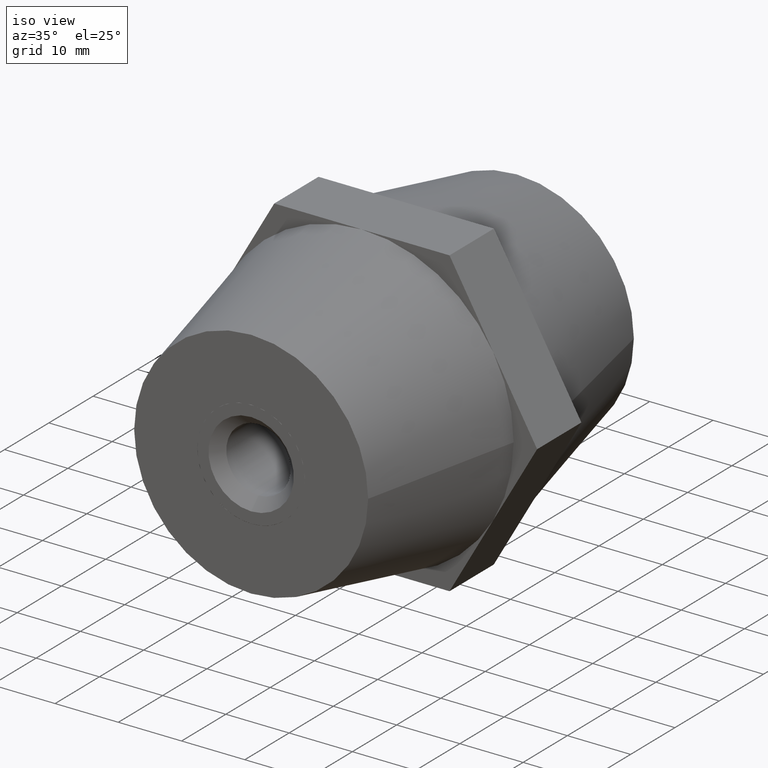
[diagram: clean part render]
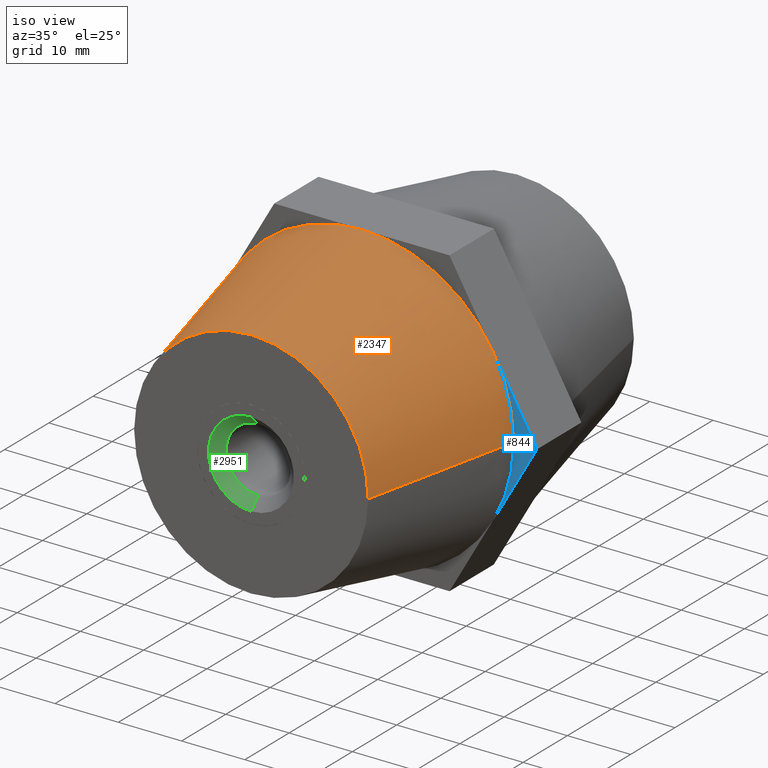
[diagram: same view with three faces highlighted in distinct colors, each labeled with its STEP entity id]
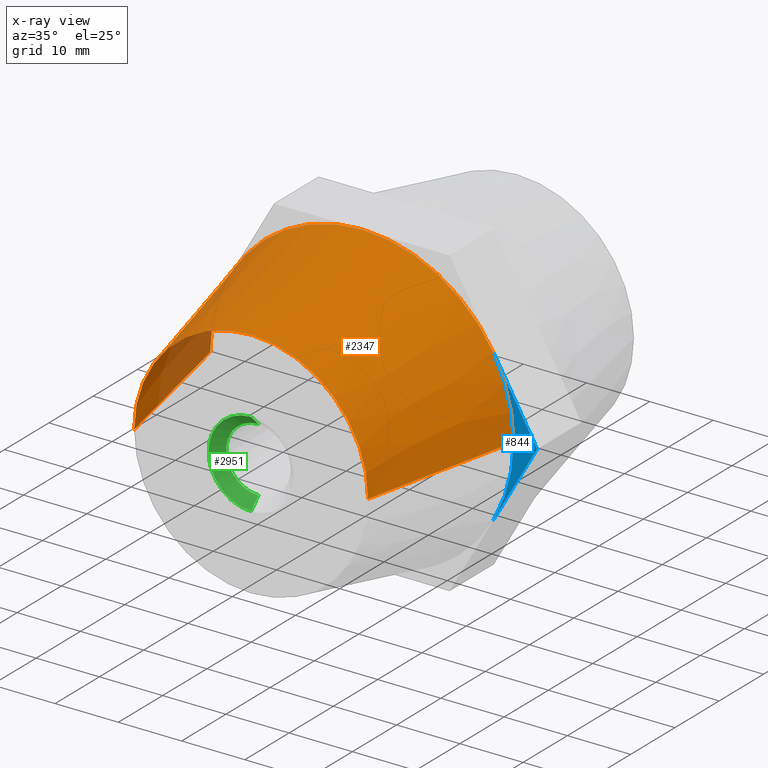
[diagram: x-ray of the same camera — body ghosted, the three highlighted faces saturated]
A machine part, iso view with three faces highlighted in distinct colors.
The next image is the same camera in x-ray (body ghosted, the three faces saturated) — at least one of them is partly hidden behind the body in this view.
Their STEP definitions:

[orange] entity #2347 — the highlighted conical surface has half-angle 12.407 deg.
#11 = LINE ( 'NONE', #1844, #2311 ) ;
#191 = ORIENTED_EDGE ( 'NONE', *, *, #590, .T. ) ;
#286 = DIRECTION ( 'NONE',  ( 0.0000000000000000000, 0.0000000000000000000, 1.000000000000000000 ) ) ;
#394 = LINE ( 'NONE', #2668, #3000 ) ;
#480 = VERTEX_POINT ( 'NONE', #3470 ) ;
#489 = DIRECTION ( 'NONE',  ( -1.000000000000000000, -1.875376730785737500E-016, 0.0000000000000000000 ) ) ;
#495 = CIRCLE ( 'NONE', #648, 24.00000000000000000 ) ;
#552 = VERTEX_POINT ( 'NONE', #3475 ) ;
#581 = CARTESIAN_POINT ( 'NONE',  ( 20.78460969082655300, -5.000000000000000000, 12.00000000000000000 ) ) ;
#590 = EDGE_CURVE ( 'NONE', #480, #1050, #394, .T. ) ;
#599 = VERTEX_POINT ( 'NONE', #581 ) ;
#642 = CIRCLE ( 'NONE', #3153, 24.00000000000000000 ) ;
#648 = AXIS2_PLACEMENT_3D ( 'NONE', #686, #959, #3077 ) ;
#680 = CIRCLE ( 'NONE', #2388, 18.50000000000000000 ) ;
#686 = CARTESIAN_POINT ( 'NONE',  ( 4.286263797015734900E-015, -5.000000000000000000, 6.466135099498040200E-016 ) ) ;
#864 = DIRECTION ( 'NONE',  ( 0.0000000000000000000, 1.000000000000000000, 0.0000000000000000000 ) ) ;
#959 = DIRECTION ( 'NONE',  ( 0.0000000000000000000, 1.000000000000000000, 0.0000000000000000000 ) ) ;
#1050 = VERTEX_POINT ( 'NONE', #1534 ) ;
#1060 = CARTESIAN_POINT ( 'NONE',  ( 1.281634599541417800E-015, -5.000000000000000000, 24.00000000000000000 ) ) ;
#1098 = DIRECTION ( 'NONE',  ( -1.000000000000000000, -1.084202172485504400E-016, 0.0000000000000000000 ) ) ;
#1120 = ORIENTED_EDGE ( 'NONE', *, *, #3342, .F. ) ;
#1135 = EDGE_CURVE ( 'NONE', #3366, #1287, #1707, .T. ) ;
#1178 = DIRECTION ( 'NONE',  ( 0.0000000000000000000, 1.000000000000000000, 0.0000000000000000000 ) ) ;
#1287 = VERTEX_POINT ( 'NONE', #1060 ) ;
#1311 = ORIENTED_EDGE ( 'NONE', *, *, #1135, .F. ) ;
#1395 = AXIS2_PLACEMENT_3D ( 'NONE', #3066, #2491, #2816 ) ;
#1534 = CARTESIAN_POINT ( 'NONE',  ( 24.00000000000000400, -5.000000000000000000, 2.939152317953647900E-015 ) ) ;
#1574 = AXIS2_PLACEMENT_3D ( 'NONE', #3484, #2241, #1098 ) ;
#1621 = AXIS2_PLACEMENT_3D ( 'NONE', #2963, #1178, #286 ) ;
#1637 = EDGE_CURVE ( 'NONE', #1287, #599, #3364, .T. ) ;
#1707 = CIRCLE ( 'NONE', #1395, 24.00000000000000000 ) ;
#1763 = DIRECTION ( 'NONE',  ( 0.2148617826751198800, 0.9766444667050899800, 2.631297944121799100E-017 ) ) ;
#1844 = CARTESIAN_POINT ( 'NONE',  ( -23.99999999999999600, -5.000000000000002700, 0.0000000000000000000 ) ) ;
#1936 = ORIENTED_EDGE ( 'NONE', *, *, #1998, .T. ) ;
#1998 = EDGE_CURVE ( 'NONE', #552, #480, #680, .T. ) ;
#2020 = EDGE_CURVE ( 'NONE', #599, #1050, #495, .T. ) ;
#2025 = DIRECTION ( 'NONE',  ( 0.0000000000000000000, 0.0000000000000000000, 1.000000000000000000 ) ) ;
#2157 = CARTESIAN_POINT ( 'NONE',  ( -23.99999999999999600, -5.000000000000000000, 0.0000000000000000000 ) ) ;
#2186 = CARTESIAN_POINT ( 'NONE',  ( -20.78460969082650000, -5.000000000000000000, 12.00000000000000000 ) ) ;
#2241 = DIRECTION ( 'NONE',  ( -1.224646799147352000E-016, 1.000000000000000000, 0.0000000000000000000 ) ) ;
#2275 = ORIENTED_EDGE ( 'NONE', *, *, #1637, .F. ) ;
#2311 = VECTOR ( 'NONE', #3104, 1000.000000000000100 ) ;
#2347 = ADVANCED_FACE ( 'NONE', ( #2769 ), #2377, .T. ) ;
#2377 = CONICAL_SURFACE ( 'NONE', #1574, 24.00000000000000000, 0.2165503049760894300 ) ;
#2388 = AXIS2_PLACEMENT_3D ( 'NONE', #3635, #2887, #489 ) ;
#2457 = ORIENTED_EDGE ( 'NONE', *, *, #2020, .F. ) ;
#2491 = DIRECTION ( 'NONE',  ( -1.224646799147352000E-016, 1.000000000000000000, 0.0000000000000000000 ) ) ;
#2668 = CARTESIAN_POINT ( 'NONE',  ( 24.00000000000000400, -4.999999999999997300, 2.939152317953647900E-015 ) ) ;
#2745 = ORIENTED_EDGE ( 'NONE', *, *, #3794, .F. ) ;
#2769 = FACE_OUTER_BOUND ( 'NONE', #3024, .T. ) ;
#2816 = DIRECTION ( 'NONE',  ( -1.000000000000000000, -1.084202172485504400E-016, 0.0000000000000000000 ) ) ;
#2887 = DIRECTION ( 'NONE',  ( -1.224646799147352000E-016, 1.000000000000000000, 0.0000000000000000000 ) ) ;
#2963 = CARTESIAN_POINT ( 'NONE',  ( 4.286263797015734900E-015, -5.000000000000000000, 6.466135099498040200E-016 ) ) ;
#2973 = CARTESIAN_POINT ( 'NONE',  ( 4.286263797015734900E-015, -5.000000000000000000, 6.466135099498040200E-016 ) ) ;
#3000 = VECTOR ( 'NONE', #1763, 1000.000000000000000 ) ;
#3024 = EDGE_LOOP ( 'NONE', ( #1936, #191, #2457, #2275, #1311, #2745, #1120 ) ) ;
#3066 = CARTESIAN_POINT ( 'NONE',  ( 4.286263797015734900E-015, -5.000000000000000000, 0.0000000000000000000 ) ) ;
#3077 = DIRECTION ( 'NONE',  ( 0.0000000000000000000, 0.0000000000000000000, 1.000000000000000000 ) ) ;
#3104 = DIRECTION ( 'NONE',  ( -0.2148617826751201000, 0.9766444667050898600, 0.0000000000000000000 ) ) ;
#3153 = AXIS2_PLACEMENT_3D ( 'NONE', #2973, #864, #2025 ) ;
#3313 = VERTEX_POINT ( 'NONE', #2157 ) ;
#3342 = EDGE_CURVE ( 'NONE', #552, #3313, #11, .T. ) ;
#3364 = CIRCLE ( 'NONE', #1621, 24.00000000000000000 ) ;
#3366 = VERTEX_POINT ( 'NONE', #2186 ) ;
#3470 = CARTESIAN_POINT ( 'NONE',  ( 18.50000000000000700, -29.99999999999999600, 2.602374448188125800E-015 ) ) ;
#3475 = CARTESIAN_POINT ( 'NONE',  ( -18.49999999999999300, -30.00000000000000400, 0.0000000000000000000 ) ) ;
#3484 = CARTESIAN_POINT ( 'NONE',  ( 4.286263797015734900E-015, -5.000000000000000000, 0.0000000000000000000 ) ) ;
#3635 = CARTESIAN_POINT ( 'NONE',  ( 7.347880794884119900E-015, -30.00000000000000000, 0.0000000000000000000 ) ) ;
#3794 = EDGE_CURVE ( 'NONE', #3313, #3366, #642, .T. ) ;

[blue] entity #844 — the highlighted planar face has unit normal (0, 1, 0).
#256 = PLANE ( 'NONE',  #3593 ) ;
#297 = LINE ( 'NONE', #792, #3140 ) ;
#348 = DIRECTION ( 'NONE',  ( 0.0000000000000000000, 1.000000000000000000, 0.0000000000000000000 ) ) ;
#367 = VERTEX_POINT ( 'NONE', #1300 ) ;
#431 = VECTOR ( 'NONE', #1414, 1000.000000000000000 ) ;
#495 = CIRCLE ( 'NONE', #648, 24.00000000000000000 ) ;
#581 = CARTESIAN_POINT ( 'NONE',  ( 20.78460969082655300, -5.000000000000000000, 12.00000000000000000 ) ) ;
#599 = VERTEX_POINT ( 'NONE', #581 ) ;
#648 = AXIS2_PLACEMENT_3D ( 'NONE', #686, #959, #3077 ) ;
#686 = CARTESIAN_POINT ( 'NONE',  ( 4.286263797015734900E-015, -5.000000000000000000, 6.466135099498040200E-016 ) ) ;
#772 = AXIS2_PLACEMENT_3D ( 'NONE', #2107, #348, #2021 ) ;
#786 = EDGE_CURVE ( 'NONE', #3877, #367, #297, .T. ) ;
#792 = CARTESIAN_POINT ( 'NONE',  ( 27.71281292110205300, -5.000000000000000000, -1.024206980640409900E-014 ) ) ;
#844 = ADVANCED_FACE ( 'NONE', ( #2325 ), #256, .F. ) ;
#880 = CARTESIAN_POINT ( 'NONE',  ( 0.0000000000000000000, -5.000000000000000000, 0.0000000000000000000 ) ) ;
#959 = DIRECTION ( 'NONE',  ( 0.0000000000000000000, 1.000000000000000000, 0.0000000000000000000 ) ) ;
#1050 = VERTEX_POINT ( 'NONE', #1534 ) ;
#1096 = DIRECTION ( 'NONE',  ( -0.4999999999999998900, 0.0000000000000000000, -0.8660254037844387100 ) ) ;
#1300 = CARTESIAN_POINT ( 'NONE',  ( 20.78460969082655300, -5.000000000000000000, -12.00000000000000000 ) ) ;
#1413 = ORIENTED_EDGE ( 'NONE', *, *, #2556, .T. ) ;
#1414 = DIRECTION ( 'NONE',  ( 0.4999999999999998900, 0.0000000000000000000, -0.8660254037844387100 ) ) ;
#1437 = ORIENTED_EDGE ( 'NONE', *, *, #2020, .T. ) ;
#1464 = CARTESIAN_POINT ( 'NONE',  ( 13.85640646055101900, -5.000000000000000000, 24.00000000000000000 ) ) ;
#1534 = CARTESIAN_POINT ( 'NONE',  ( 24.00000000000000400, -5.000000000000000000, 2.939152317953647900E-015 ) ) ;
#1603 = LINE ( 'NONE', #1464, #431 ) ;
#2020 = EDGE_CURVE ( 'NONE', #599, #1050, #495, .T. ) ;
#2021 = DIRECTION ( 'NONE',  ( 0.0000000000000000000, 0.0000000000000000000, 1.000000000000000000 ) ) ;
#2107 = CARTESIAN_POINT ( 'NONE',  ( 4.286263797015734900E-015, -5.000000000000000000, 6.466135099498040200E-016 ) ) ;
#2242 = EDGE_LOOP ( 'NONE', ( #3525, #1437, #1413, #3560 ) ) ;
#2325 = FACE_OUTER_BOUND ( 'NONE', #2242, .T. ) ;
#2556 = EDGE_CURVE ( 'NONE', #1050, #367, #3079, .T. ) ;
#2609 = EDGE_CURVE ( 'NONE', #599, #3877, #1603, .T. ) ;
#2704 = DIRECTION ( 'NONE',  ( 0.0000000000000000000, 1.000000000000000000, 0.0000000000000000000 ) ) ;
#3077 = DIRECTION ( 'NONE',  ( 0.0000000000000000000, 0.0000000000000000000, 1.000000000000000000 ) ) ;
#3079 = CIRCLE ( 'NONE', #772, 24.00000000000000000 ) ;
#3140 = VECTOR ( 'NONE', #1096, 1000.000000000000000 ) ;
#3321 = CARTESIAN_POINT ( 'NONE',  ( 27.71281292110205300, -5.000000000000000000, -1.024206980640409900E-014 ) ) ;
#3525 = ORIENTED_EDGE ( 'NONE', *, *, #2609, .F. ) ;
#3560 = ORIENTED_EDGE ( 'NONE', *, *, #786, .F. ) ;
#3593 = AXIS2_PLACEMENT_3D ( 'NONE', #880, #2704, #3896 ) ;
#3877 = VERTEX_POINT ( 'NONE', #3321 ) ;
#3896 = DIRECTION ( 'NONE',  ( 0.0000000000000000000, 0.0000000000000000000, 1.000000000000000000 ) ) ;

[green] entity #2951 — the highlighted conical surface has half-angle 45 deg.
#41 = ORIENTED_EDGE ( 'NONE', *, *, #2297, .F. ) ;
#126 = CARTESIAN_POINT ( 'NONE',  ( 0.0000000000000000000, 19.00000000000000000, 6.750000000000000000 ) ) ;
#211 = AXIS2_PLACEMENT_3D ( 'NONE', #1357, #3821, #3546 ) ;
#277 = EDGE_CURVE ( 'NONE', #3554, #1044, #2603, .T. ) ;
#292 = CONICAL_SURFACE ( 'NONE', #211, 6.750000000000000000, 0.7853981633974490600 ) ;
#395 = ORIENTED_EDGE ( 'NONE', *, *, #1716, .F. ) ;
#419 = VERTEX_POINT ( 'NONE', #1327 ) ;
#424 = ORIENTED_EDGE ( 'NONE', *, *, #277, .T. ) ;
#540 = VECTOR ( 'NONE', #1673, 1000.000000000000000 ) ;
#879 = DIRECTION ( 'NONE',  ( 0.0000000000000000000, 0.7071067811865470200, 0.7071067811865480200 ) ) ;
#921 = VERTEX_POINT ( 'NONE', #3577 ) ;
#924 = CARTESIAN_POINT ( 'NONE',  ( 0.0000000000000000000, 17.35000000000000100, 0.0000000000000000000 ) ) ;
#1044 = VERTEX_POINT ( 'NONE', #1456 ) ;
#1327 = CARTESIAN_POINT ( 'NONE',  ( 0.0000000000000000000, 17.35000000000000100, 5.100000000000000500 ) ) ;
#1357 = CARTESIAN_POINT ( 'NONE',  ( 0.0000000000000000000, 19.00000000000000000, 0.0000000000000000000 ) ) ;
#1456 = CARTESIAN_POINT ( 'NONE',  ( 8.266365894244634300E-016, 19.00000000000000000, -6.750000000000000000 ) ) ;
#1607 = EDGE_CURVE ( 'NONE', #419, #3554, #2045, .T. ) ;
#1667 = CIRCLE ( 'NONE', #2677, 5.100000000000000500 ) ;
#1673 = DIRECTION ( 'NONE',  ( 8.659560562354939000E-017, 0.7071067811865470200, -0.7071067811865480200 ) ) ;
#1716 = EDGE_CURVE ( 'NONE', #419, #921, #1667, .T. ) ;
#2045 = LINE ( 'NONE', #3868, #3569 ) ;
#2297 = EDGE_CURVE ( 'NONE', #921, #1044, #3473, .T. ) ;
#2374 = DIRECTION ( 'NONE',  ( 0.0000000000000000000, 1.000000000000000000, 0.0000000000000000000 ) ) ;
#2474 = EDGE_LOOP ( 'NONE', ( #41, #395, #2804, #424 ) ) ;
#2601 = CARTESIAN_POINT ( 'NONE',  ( 8.266365894244634300E-016, 19.00000000000000000, -6.750000000000000000 ) ) ;
#2603 = CIRCLE ( 'NONE', #3625, 6.750000000000000000 ) ;
#2677 = AXIS2_PLACEMENT_3D ( 'NONE', #924, #3009, #3622 ) ;
#2690 = DIRECTION ( 'NONE',  ( 0.0000000000000000000, 0.0000000000000000000, 1.000000000000000000 ) ) ;
#2804 = ORIENTED_EDGE ( 'NONE', *, *, #1607, .T. ) ;
#2951 = ADVANCED_FACE ( 'NONE', ( #3608 ), #292, .F. ) ;
#3009 = DIRECTION ( 'NONE',  ( 0.0000000000000000000, 1.000000000000000000, 0.0000000000000000000 ) ) ;
#3473 = LINE ( 'NONE', #2601, #540 ) ;
#3546 = DIRECTION ( 'NONE',  ( 0.0000000000000000000, 0.0000000000000000000, 1.000000000000000000 ) ) ;
#3554 = VERTEX_POINT ( 'NONE', #126 ) ;
#3569 = VECTOR ( 'NONE', #879, 1000.000000000000000 ) ;
#3577 = CARTESIAN_POINT ( 'NONE',  ( 6.245698675651501800E-016, 17.35000000000000100, -5.100000000000000500 ) ) ;
#3608 = FACE_OUTER_BOUND ( 'NONE', #2474, .T. ) ;
#3622 = DIRECTION ( 'NONE',  ( 0.0000000000000000000, 0.0000000000000000000, 1.000000000000000000 ) ) ;
#3625 = AXIS2_PLACEMENT_3D ( 'NONE', #3885, #2374, #2690 ) ;
#3821 = DIRECTION ( 'NONE',  ( 0.0000000000000000000, 1.000000000000000000, 0.0000000000000000000 ) ) ;
#3868 = CARTESIAN_POINT ( 'NONE',  ( 0.0000000000000000000, 19.00000000000000000, 6.750000000000000000 ) ) ;
#3885 = CARTESIAN_POINT ( 'NONE',  ( 0.0000000000000000000, 19.00000000000000000, 0.0000000000000000000 ) ) ;